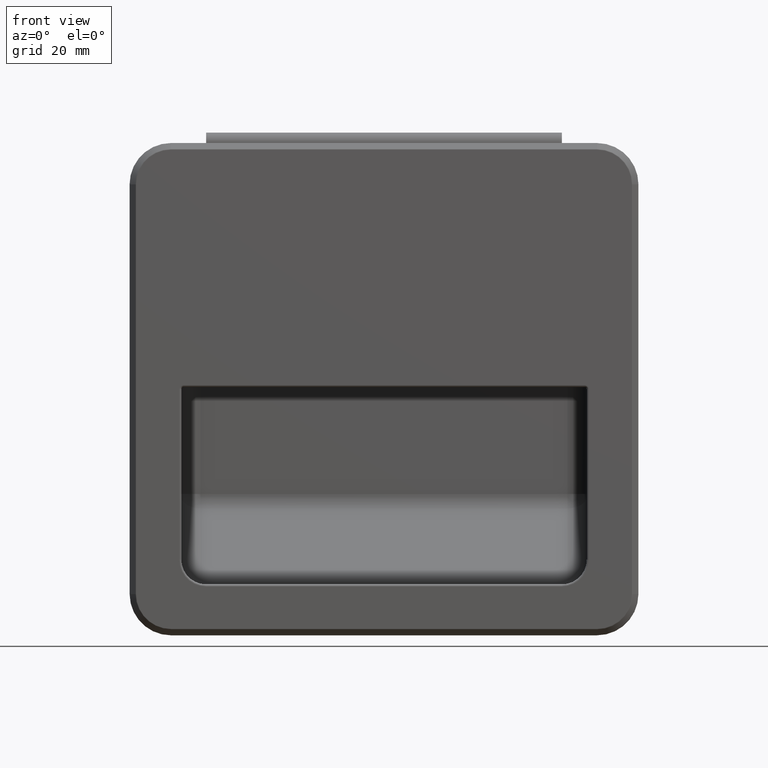
[diagram: clean part render]
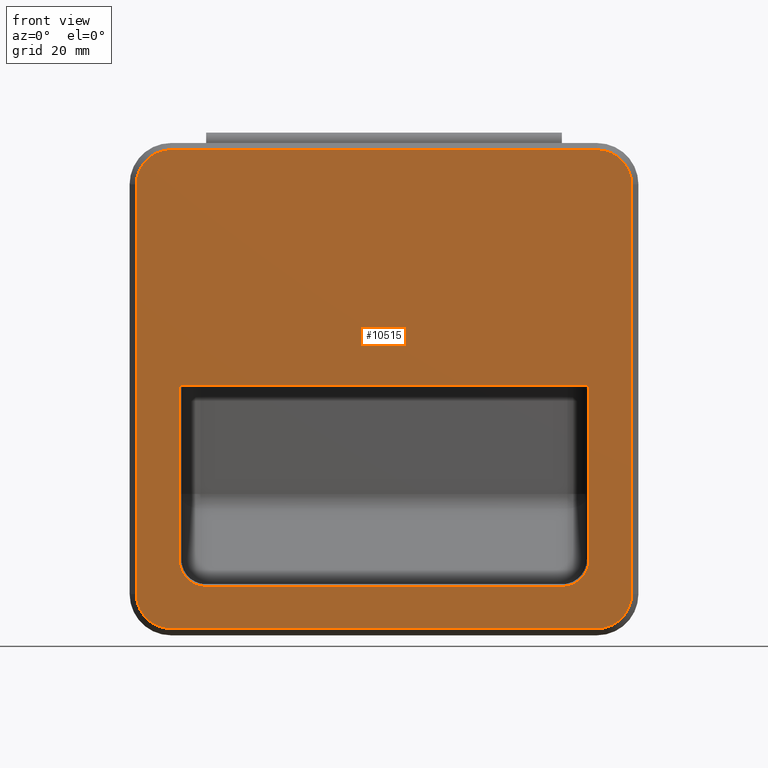
[diagram: same view with one face highlighted and labeled with its STEP entity id]
A machine part, front view. The second image highlights one B-rep face of the part: STEP entity #10515.
In plain terms, the highlighted planar face has unit normal (0, 1, 0).
Its self-contained STEP definition (entity closure, byte-faithful):
#190 = VECTOR ( 'NONE', #33081, 1000.000000000000000 ) ;
#499 = VECTOR ( 'NONE', #24986, 1000.000000000000000 ) ;
#528 = CARTESIAN_POINT ( 'NONE',  ( -59.87573593119999800, 0.0000000000000000000, -68.37573593119999800 ) ) ;
#1179 = AXIS2_PLACEMENT_3D ( 'NONE', #40630, #21290, #1915 ) ;
#1915 = DIRECTION ( 'NONE',  ( -1.000000000000000000, -8.166662595556740500E-015, 0.0000000000000000000 ) ) ;
#1940 = CARTESIAN_POINT ( 'NONE',  ( 59.87573593120081500, -8.483097217429493700E-013, -49.99999999993700300 ) ) ;
#2085 = FACE_BOUND ( 'NONE', #3387, .T. ) ;
#2177 = EDGE_CURVE ( 'NONE', #23957, #2826, #17886, .T. ) ;
#2201 = EDGE_CURVE ( 'NONE', #31827, #26334, #35068, .T. ) ;
#2826 = VERTEX_POINT ( 'NONE', #17179 ) ;
#3387 = EDGE_LOOP ( 'NONE', ( #10073, #14758, #5761, #11776, #18513, #27844, #19521, #34844 ) ) ;
#3587 = VERTEX_POINT ( 'NONE', #23630 ) ;
#4013 = CARTESIAN_POINT ( 'NONE',  ( 51.49999999984115100, -2.214266096867145700E-012, -49.99999999995773700 ) ) ;
#4322 = AXIS2_PLACEMENT_3D ( 'NONE', #5592, #28253, #8861 ) ;
#4432 = CARTESIAN_POINT ( 'NONE',  ( -69.87573593119999800, 0.0000000000000000000, 57.37573593279998400 ) ) ;
#4637 = CARTESIAN_POINT ( 'NONE',  ( 59.87573593119535100, -5.091006826177246800E-013, 49.00000000146610500 ) ) ;
#4651 = CARTESIAN_POINT ( 'NONE',  ( -49.49999999940000400, 0.0000000000000000000, -68.37573593119999800 ) ) ;
#4992 = EDGE_CURVE ( 'NONE', #34062, #30891, #35931, .T. ) ;
#5362 = DIRECTION ( 'NONE',  ( 1.000000000000000000, 0.0000000000000000000, 0.0000000000000000000 ) ) ;
#5592 = CARTESIAN_POINT ( 'NONE',  ( 42.99999999940766300, -1.121487885197280900E-011, -41.69812100019999700 ) ) ;
#5761 = ORIENTED_EDGE ( 'NONE', *, *, #29433, .F. ) ;
#5775 = LINE ( 'NONE', #24784, #30619 ) ;
#5994 = VECTOR ( 'NONE', #40295, 1000.000000000000000 ) ;
#6667 = EDGE_CURVE ( 'NONE', #23780, #41135, #35264, .T. ) ;
#6903 = CIRCLE ( 'NONE', #4322, 6.499999999999999100 ) ;
#7023 = CARTESIAN_POINT ( 'NONE',  ( -59.87573593119918800, -7.052407342760352400E-013, 49.00000000147271400 ) ) ;
#7281 = DIRECTION ( 'NONE',  ( 0.0000000000000000000, -7.072537271866217800E-015, 1.000000000000000000 ) ) ;
#7455 = CARTESIAN_POINT ( 'NONE',  ( -49.49999999940000400, -6.780275126072599100E-012, -0.4999999999950305900 ) ) ;
#7770 = CARTESIAN_POINT ( 'NONE',  ( 51.49999999987058200, -1.616271294235328300E-012, -58.37573593122914400 ) ) ;
#7782 = VERTEX_POINT ( 'NONE', #7455 ) ;
#8141 = AXIS2_PLACEMENT_3D ( 'NONE', #28035, #8632, #31276 ) ;
#8632 = DIRECTION ( 'NONE',  ( 0.0000000000000000000, 1.000000000000000000, -0.0000000000000000000 ) ) ;
#8697 = AXIS2_PLACEMENT_3D ( 'NONE', #12358, #35017, #15642 ) ;
#8831 = CARTESIAN_POINT ( 'NONE',  ( 59.87573593119999100, 0.0000000000000000000, -68.37573593119999800 ) ) ;
#8861 = DIRECTION ( 'NONE',  ( 0.0000000000000000000, 0.0000000000000000000, 1.000000000000000000 ) ) ;
#9144 = AXIS2_PLACEMENT_3D ( 'NONE', #4013, #26680, #7281 ) ;
#9259 = DIRECTION ( 'NONE',  ( -0.0000000000000000000, -1.000000000000000000, 0.0000000000000000000 ) ) ;
#9458 = VECTOR ( 'NONE', #30121, 1000.000000000000000 ) ;
#9652 = EDGE_CURVE ( 'NONE', #21252, #40832, #34126, .T. ) ;
#9663 = EDGE_CURVE ( 'NONE', #3587, #23957, #16921, .T. ) ;
#10073 = ORIENTED_EDGE ( 'NONE', *, *, #9663, .F. ) ;
#10381 = CARTESIAN_POINT ( 'NONE',  ( -48.49999999940314400, -1.356055025214519800E-011, -0.4999999999900606700 ) ) ;
#10515 = ADVANCED_FACE ( 'NONE', ( #2085, #19324 ), #38015, .F. ) ;
#11776 = ORIENTED_EDGE ( 'NONE', *, *, #39919, .F. ) ;
#12175 = ORIENTED_EDGE ( 'NONE', *, *, #2201, .F. ) ;
#12358 = CARTESIAN_POINT ( 'NONE',  ( -42.99999999940000400, -1.197631403770937900E-011, -41.69812100020765700 ) ) ;
#13040 = AXIS2_PLACEMENT_3D ( 'NONE', #28647, #9259, #31906 ) ;
#13136 = ORIENTED_EDGE ( 'NONE', *, *, #39906, .F. ) ;
#13310 = CARTESIAN_POINT ( 'NONE',  ( -51.49999999989999800, -1.669797573776037500E-012, -58.37573593120833200 ) ) ;
#13445 = ORIENTED_EDGE ( 'NONE', *, *, #6667, .F. ) ;
#13597 = DIRECTION ( 'NONE',  ( 0.0000000000000000000, 0.0000000000000000000, 1.000000000000000000 ) ) ;
#14613 = LINE ( 'NONE', #4651, #5994 ) ;
#14758 = ORIENTED_EDGE ( 'NONE', *, *, #41586, .F. ) ;
#15073 = EDGE_CURVE ( 'NONE', #30891, #23780, #26854, .T. ) ;
#15146 = CARTESIAN_POINT ( 'NONE',  ( 51.49999999989998400, -3.413610540070610700E-013, 57.37573593278332900 ) ) ;
#15293 = DIRECTION ( 'NONE',  ( 7.072537271937354900E-015, 1.000000000000000000, 4.083331297795042100E-015 ) ) ;
#15524 = AXIS2_PLACEMENT_3D ( 'NONE', #34963, #15578, #38145 ) ;
#15578 = DIRECTION ( 'NONE',  ( -0.0000000000000000000, 1.000000000000000000, 0.0000000000000000000 ) ) ;
#15642 = DIRECTION ( 'NONE',  ( 2.135044278125301300E-015, 0.0000000000000000000, 1.000000000000000000 ) ) ;
#15951 = DIRECTION ( 'NONE',  ( 0.0000000000000000000, -0.0000000000000000000, 1.000000000000000000 ) ) ;
#16921 = CIRCLE ( 'NONE', #13040, 1.000000000005767200 ) ;
#17179 = CARTESIAN_POINT ( 'NONE',  ( -48.49999999940158100, -6.780275126072599100E-012, 0.5000000000000004400 ) ) ;
#17352 = CARTESIAN_POINT ( 'NONE',  ( -69.87573593119999800, 0.0000000000000000000, 0.5000000000000004400 ) ) ;
#17731 = CARTESIAN_POINT ( 'NONE',  ( -51.49999999987058200, -1.423015350418926400E-015, 57.37573593279641000 ) ) ;
#17886 = LINE ( 'NONE', #17352, #26474 ) ;
#18513 = ORIENTED_EDGE ( 'NONE', *, *, #9652, .F. ) ;
#19141 = CIRCLE ( 'NONE', #28165, 8.375735931210028800 ) ;
#19324 = FACE_OUTER_BOUND ( 'NONE', #25885, .T. ) ;
#19521 = ORIENTED_EDGE ( 'NONE', *, *, #41220, .F. ) ;
#20374 = CARTESIAN_POINT ( 'NONE',  ( -69.87573593119999800, 0.0000000000000000000, -58.37573593119999800 ) ) ;
#20641 = ORIENTED_EDGE ( 'NONE', *, *, #26669, .F. ) ;
#21252 = VERTEX_POINT ( 'NONE', #33522 ) ;
#21290 = DIRECTION ( 'NONE',  ( -8.166662595556739000E-015, 1.000000000000000000, -1.732677464164383900E-025 ) ) ;
#22334 = EDGE_CURVE ( 'NONE', #7782, #21252, #14613, .T. ) ;
#23021 = CIRCLE ( 'NONE', #8141, 8.375735931367762200 ) ;
#23524 = CARTESIAN_POINT ( 'NONE',  ( -59.87573593119999800, -1.324929131917753100E-012, -49.99999999994498300 ) ) ;
#23630 = CARTESIAN_POINT ( 'NONE',  ( 49.49999999939999600, -1.293230930329847300E-011, -0.5000000000075512900 ) ) ;
#23780 = VERTEX_POINT ( 'NONE', #7770 ) ;
#23800 = CARTESIAN_POINT ( 'NONE',  ( 42.99999999940383300, -5.607439425986404700E-012, -48.19812100019999700 ) ) ;
#23957 = VERTEX_POINT ( 'NONE', #41105 ) ;
#24649 = VECTOR ( 'NONE', #15951, 1000.000000000000000 ) ;
#24784 = CARTESIAN_POINT ( 'NONE',  ( -69.87573593119999800, 0.0000000000000000000, -48.19812100019999700 ) ) ;
#24986 = DIRECTION ( 'NONE',  ( -0.0000000000000000000, 0.0000000000000000000, -1.000000000000000000 ) ) ;
#25326 = VERTEX_POINT ( 'NONE', #7023 ) ;
#25461 = ORIENTED_EDGE ( 'NONE', *, *, #4992, .F. ) ;
#25650 = LINE ( 'NONE', #32085, #24649 ) ;
#25885 = EDGE_LOOP ( 'NONE', ( #12175, #31622, #20641, #29027, #13445, #26031, #25461, #13136 ) ) ;
#26017 = CIRCLE ( 'NONE', #1179, 8.375735931358839500 ) ;
#26029 = LINE ( 'NONE', #528, #190 ) ;
#26031 = ORIENTED_EDGE ( 'NONE', *, *, #15073, .F. ) ;
#26334 = VERTEX_POINT ( 'NONE', #15146 ) ;
#26474 = VECTOR ( 'NONE', #36675, 1000.000000000000000 ) ;
#26669 = EDGE_CURVE ( 'NONE', #27090, #25326, #26029, .T. ) ;
#26680 = DIRECTION ( 'NONE',  ( -4.083331297720614600E-015, 1.000000000000000000, 7.072537271866198000E-015 ) ) ;
#26854 = CIRCLE ( 'NONE', #9144, 8.375735931358839500 ) ;
#27090 = VERTEX_POINT ( 'NONE', #23524 ) ;
#27098 = DIRECTION ( 'NONE',  ( 1.000000000000000000, 0.0000000000000000000, 0.0000000000000000000 ) ) ;
#27388 = VERTEX_POINT ( 'NONE', #36500 ) ;
#27844 = ORIENTED_EDGE ( 'NONE', *, *, #22334, .F. ) ;
#28035 = CARTESIAN_POINT ( 'NONE',  ( 51.49999999989999800, -6.827221080141221400E-013, 49.00000000143222700 ) ) ;
#28165 = AXIS2_PLACEMENT_3D ( 'NONE', #34682, #15293, #37863 ) ;
#28253 = DIRECTION ( 'NONE',  ( 0.0000000000000000000, -1.000000000000000000, -0.0000000000000000000 ) ) ;
#28513 = AXIS2_PLACEMENT_3D ( 'NONE', #10381, #33007, #13597 ) ;
#28647 = CARTESIAN_POINT ( 'NONE',  ( 48.49999999939422700, -9.389841335027959700E-012, -0.5000000000086508600 ) ) ;
#29027 = ORIENTED_EDGE ( 'NONE', *, *, #38993, .F. ) ;
#29264 = CIRCLE ( 'NONE', #28513, 0.9999999999900611700 ) ;
#29433 = EDGE_CURVE ( 'NONE', #39723, #27388, #6903, .T. ) ;
#30121 = DIRECTION ( 'NONE',  ( -1.000000000000000000, -0.0000000000000000000, -0.0000000000000000000 ) ) ;
#30619 = VECTOR ( 'NONE', #5362, 1000.000000000000000 ) ;
#30891 = VERTEX_POINT ( 'NONE', #1940 ) ;
#31276 = DIRECTION ( 'NONE',  ( 0.0000000000000000000, 0.0000000000000000000, 1.000000000000000000 ) ) ;
#31622 = ORIENTED_EDGE ( 'NONE', *, *, #36700, .F. ) ;
#31827 = VERTEX_POINT ( 'NONE', #17731 ) ;
#31906 = DIRECTION ( 'NONE',  ( 0.0000000000000000000, 0.0000000000000000000, 1.000000000000000000 ) ) ;
#32085 = CARTESIAN_POINT ( 'NONE',  ( 49.49999999939999600, 0.0000000000000000000, -68.37573593119999800 ) ) ;
#33007 = DIRECTION ( 'NONE',  ( -0.0000000000000000000, -1.000000000000000000, -0.0000000000000000000 ) ) ;
#33081 = DIRECTION ( 'NONE',  ( 0.0000000000000000000, -0.0000000000000000000, 1.000000000000000000 ) ) ;
#33522 = CARTESIAN_POINT ( 'NONE',  ( -49.49999999940034500, -7.297575087619745400E-012, -41.69812100020001100 ) ) ;
#34025 = CARTESIAN_POINT ( 'NONE',  ( -42.99999999940000400, -5.994093025749047700E-012, -48.19812100020190800 ) ) ;
#34062 = VERTEX_POINT ( 'NONE', #4637 ) ;
#34073 = VECTOR ( 'NONE', #27098, 1000.000000000000000 ) ;
#34126 = CIRCLE ( 'NONE', #8697, 6.499999999999999100 ) ;
#34682 = CARTESIAN_POINT ( 'NONE',  ( -51.49999999989999800, -2.709095968389529900E-012, -49.99999999998996700 ) ) ;
#34844 = ORIENTED_EDGE ( 'NONE', *, *, #2177, .F. ) ;
#34963 = CARTESIAN_POINT ( 'NONE',  ( -69.87573593119999800, 0.0000000000000000000, -68.37573593119999800 ) ) ;
#35017 = DIRECTION ( 'NONE',  ( 0.0000000000000000000, -1.000000000000000000, -0.0000000000000000000 ) ) ;
#35068 = LINE ( 'NONE', #4432, #34073 ) ;
#35264 = LINE ( 'NONE', #20374, #9458 ) ;
#35931 = LINE ( 'NONE', #8831, #499 ) ;
#36500 = CARTESIAN_POINT ( 'NONE',  ( 49.49999999940190800, -5.803734229314905200E-012, -41.69812100019999700 ) ) ;
#36675 = DIRECTION ( 'NONE',  ( -1.000000000000000000, -0.0000000000000000000, -0.0000000000000000000 ) ) ;
#36700 = EDGE_CURVE ( 'NONE', #25326, #31827, #26017, .T. ) ;
#37863 = DIRECTION ( 'NONE',  ( -1.000000000000000000, 7.072537271937341400E-015, 0.0000000000000000000 ) ) ;
#38015 = PLANE ( 'NONE',  #15524 ) ;
#38145 = DIRECTION ( 'NONE',  ( 0.0000000000000000000, -0.0000000000000000000, 1.000000000000000000 ) ) ;
#38993 = EDGE_CURVE ( 'NONE', #41135, #27090, #19141, .T. ) ;
#39723 = VERTEX_POINT ( 'NONE', #23800 ) ;
#39906 = EDGE_CURVE ( 'NONE', #26334, #34062, #23021, .T. ) ;
#39919 = EDGE_CURVE ( 'NONE', #40832, #39723, #5775, .T. ) ;
#40295 = DIRECTION ( 'NONE',  ( -0.0000000000000000000, 0.0000000000000000000, -1.000000000000000000 ) ) ;
#40630 = CARTESIAN_POINT ( 'NONE',  ( -51.49999999984115800, -1.897353801849632800E-015, 49.00000000142679800 ) ) ;
#40832 = VERTEX_POINT ( 'NONE', #34025 ) ;
#41105 = CARTESIAN_POINT ( 'NONE',  ( 48.49999999939711900, -4.694920667513979900E-012, 0.5000000000000004400 ) ) ;
#41135 = VERTEX_POINT ( 'NONE', #13310 ) ;
#41220 = EDGE_CURVE ( 'NONE', #2826, #7782, #29264, .T. ) ;
#41586 = EDGE_CURVE ( 'NONE', #27388, #3587, #25650, .T. ) ;